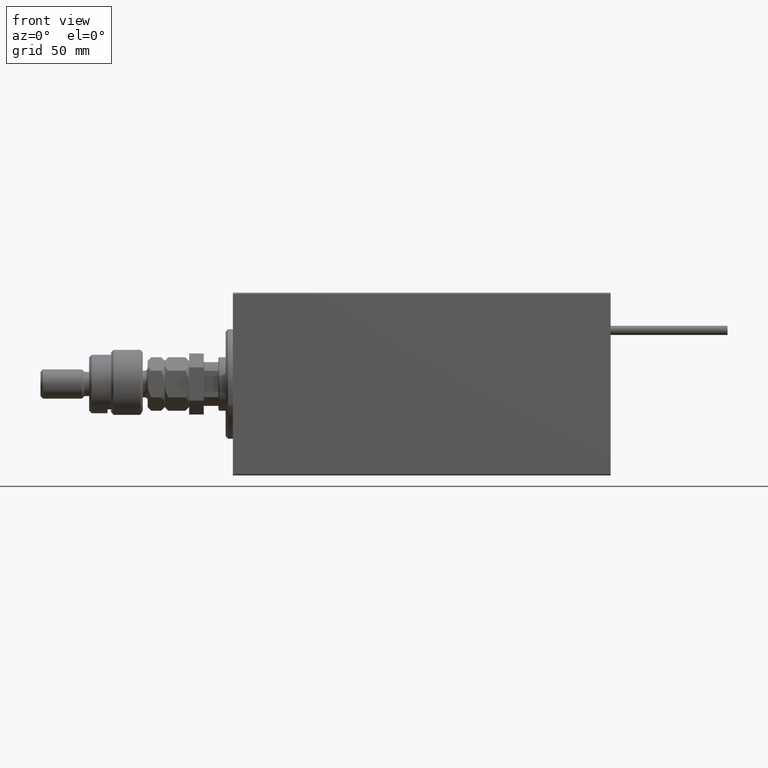
[diagram: clean part render]
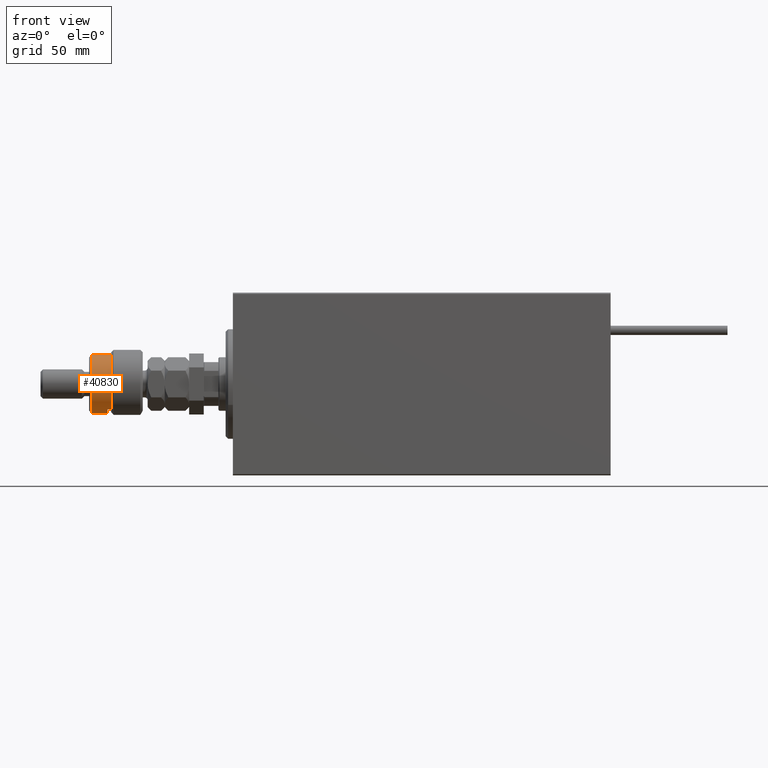
[diagram: same view with one face highlighted and labeled with its STEP entity id]
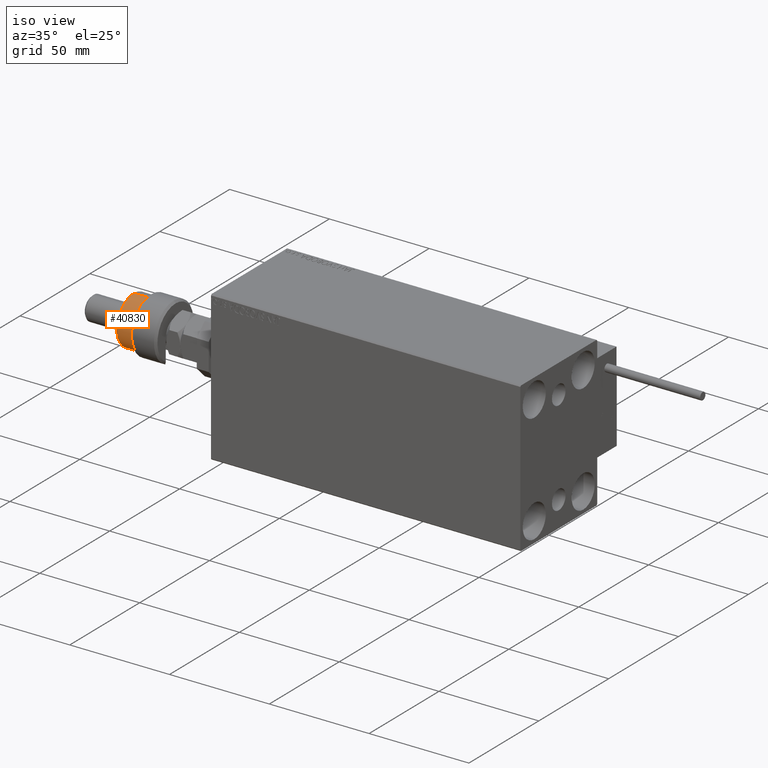
[diagram: same view with one face highlighted and labeled with its STEP entity id]
A machine part, front view. The second image highlights one B-rep face of the part: STEP entity #40830.
A second angle (iso view) of the same face is appended — the face is thin or edge-on in the first view.
In plain terms, the highlighted cylindrical surface (edge-blend (fillet) strip) has radius 12 mm, axis along (1, -0, -0).
Its self-contained STEP definition (entity closure, byte-faithful):
#2101 = LINE ( 'NONE', #38635, #27490 ) ;
#2717 = DIRECTION ( 'NONE',  ( 1.000000000000000000, 0.000000000000000000, 0.000000000000000000 ) ) ;
#5833 = VECTOR ( 'NONE', #42384, 1000.000000000000000 ) ;
#7489 = CARTESIAN_POINT ( 'NONE',  ( 0.000000000000000000, 0.000000000000000000, 13.00000000000000000 ) ) ;
#7866 = CARTESIAN_POINT ( 'NONE',  ( 0.000000000000000000, 0.000000000000000000, 22.00000000000000000 ) ) ;
#11530 = DIRECTION ( 'NONE',  ( 0.000000000000000000, 0.000000000000000000, -1.000000000000000000 ) ) ;
#12776 = EDGE_LOOP ( 'NONE', ( #49386, #15627, #52482, #45189, #31573, #38137 ) ) ;
#12893 = DIRECTION ( 'NONE',  ( 1.000000000000000000, 0.000000000000000000, 0.000000000000000000 ) ) ;
#13131 = EDGE_CURVE ( 'NONE', #42242, #51659, #2101, .T. ) ;
#14217 = CIRCLE ( 'NONE', #44012, 12.00000000000000178 ) ;
#14862 = LINE ( 'NONE', #19391, #48960 ) ;
#14927 = EDGE_CURVE ( 'NONE', #51659, #51505, #19037, .T. ) ;
#15321 = CIRCLE ( 'NONE', #51059, 12.00000000000000178 ) ;
#15627 = ORIENTED_EDGE ( 'NONE', *, *, #37233, .T. ) ;
#19037 = CIRCLE ( 'NONE', #30962, 12.00000000000000178 ) ;
#19228 = CARTESIAN_POINT ( 'NONE',  ( -10.39230484541326582, -5.999999999999998224, 14.50000000000000000 ) ) ;
#19264 = CARTESIAN_POINT ( 'NONE',  ( 12.00000000000000178, 1.469576158976824144E-15, 13.00000000000000000 ) ) ;
#19391 = CARTESIAN_POINT ( 'NONE',  ( 12.00000000000000178, 1.469576158976824144E-15, 22.00000000000000000 ) ) ;
#24272 = EDGE_CURVE ( 'NONE', #41634, #51505, #14862, .T. ) ;
#24407 = DIRECTION ( 'NONE',  ( -1.000000000000000000, 0.000000000000000000, 0.000000000000000000 ) ) ;
#27490 = VECTOR ( 'NONE', #30914, 1000.000000000000000 ) ;
#27802 = DIRECTION ( 'NONE',  ( -1.000000000000000000, 0.000000000000000000, 0.000000000000000000 ) ) ;
#30138 = LINE ( 'NONE', #49859, #5833 ) ;
#30564 = CARTESIAN_POINT ( 'NONE',  ( 0.000000000000000000, 0.000000000000000000, 14.50000000000000000 ) ) ;
#30914 = DIRECTION ( 'NONE',  ( -0.000000000000000000, -0.000000000000000000, -1.000000000000000000 ) ) ;
#30962 = AXIS2_PLACEMENT_3D ( 'NONE', #7489, #51241, #2717 ) ;
#31573 = ORIENTED_EDGE ( 'NONE', *, *, #13131, .T. ) ;
#31677 = EDGE_CURVE ( 'NONE', #42242, #32329, #14217, .T. ) ;
#32329 = VERTEX_POINT ( 'NONE', #40205 ) ;
#32408 = CYLINDRICAL_SURFACE ( 'NONE', #47657, 12.00000000000000178 ) ;
#34643 = VERTEX_POINT ( 'NONE', #50282 ) ;
#36401 = FACE_OUTER_BOUND ( 'NONE', #12776, .T. ) ;
#37233 = EDGE_CURVE ( 'NONE', #41634, #34643, #15321, .T. ) ;
#38137 = ORIENTED_EDGE ( 'NONE', *, *, #14927, .T. ) ;
#38635 = CARTESIAN_POINT ( 'NONE',  ( -10.39230484541326760, -6.000000000000000000, 22.00000000000000000 ) ) ;
#38934 = CARTESIAN_POINT ( 'NONE',  ( -10.39230484541326760, -6.000000000000000000, 13.00000000000000000 ) ) ;
#40205 = CARTESIAN_POINT ( 'NONE',  ( -12.00000000000000178, 0.000000000000000000, 14.50000000000000000 ) ) ;
#40830 = ADVANCED_FACE ( 'NONE', ( #36401 ), #32408, .T. ) ;
#41160 = CARTESIAN_POINT ( 'NONE',  ( 0.000000000000000000, 0.000000000000000000, 20.99999999999998224 ) ) ;
#41634 = VERTEX_POINT ( 'NONE', #42041 ) ;
#42041 = CARTESIAN_POINT ( 'NONE',  ( 12.00000000000000178, 1.469576158976824144E-15, 20.99999999999998224 ) ) ;
#42242 = VERTEX_POINT ( 'NONE', #19228 ) ;
#42384 = DIRECTION ( 'NONE',  ( -0.000000000000000000, -0.000000000000000000, -1.000000000000000000 ) ) ;
#44012 = AXIS2_PLACEMENT_3D ( 'NONE', #30564, #11530, #27802 ) ;
#44642 = DIRECTION ( 'NONE',  ( -0.000000000000000000, -0.000000000000000000, -1.000000000000000000 ) ) ;
#45189 = ORIENTED_EDGE ( 'NONE', *, *, #31677, .F. ) ;
#47657 = AXIS2_PLACEMENT_3D ( 'NONE', #7866, #44642, #24407 ) ;
#48427 = DIRECTION ( 'NONE',  ( -0.000000000000000000, -0.000000000000000000, -1.000000000000000000 ) ) ;
#48960 = VECTOR ( 'NONE', #48427, 1000.000000000000000 ) ;
#49386 = ORIENTED_EDGE ( 'NONE', *, *, #24272, .F. ) ;
#49767 = EDGE_CURVE ( 'NONE', #34643, #32329, #30138, .T. ) ;
#49859 = CARTESIAN_POINT ( 'NONE',  ( -12.00000000000000178, 0.000000000000000000, 22.00000000000000000 ) ) ;
#50282 = CARTESIAN_POINT ( 'NONE',  ( -12.00000000000000178, 0.000000000000000000, 20.99999999999998224 ) ) ;
#51059 = AXIS2_PLACEMENT_3D ( 'NONE', #41160, #52633, #12893 ) ;
#51241 = DIRECTION ( 'NONE',  ( 0.000000000000000000, 0.000000000000000000, 1.000000000000000000 ) ) ;
#51505 = VERTEX_POINT ( 'NONE', #19264 ) ;
#51659 = VERTEX_POINT ( 'NONE', #38934 ) ;
#52482 = ORIENTED_EDGE ( 'NONE', *, *, #49767, .T. ) ;
#52633 = DIRECTION ( 'NONE',  ( 0.000000000000000000, 0.000000000000000000, -1.000000000000000000 ) ) ;